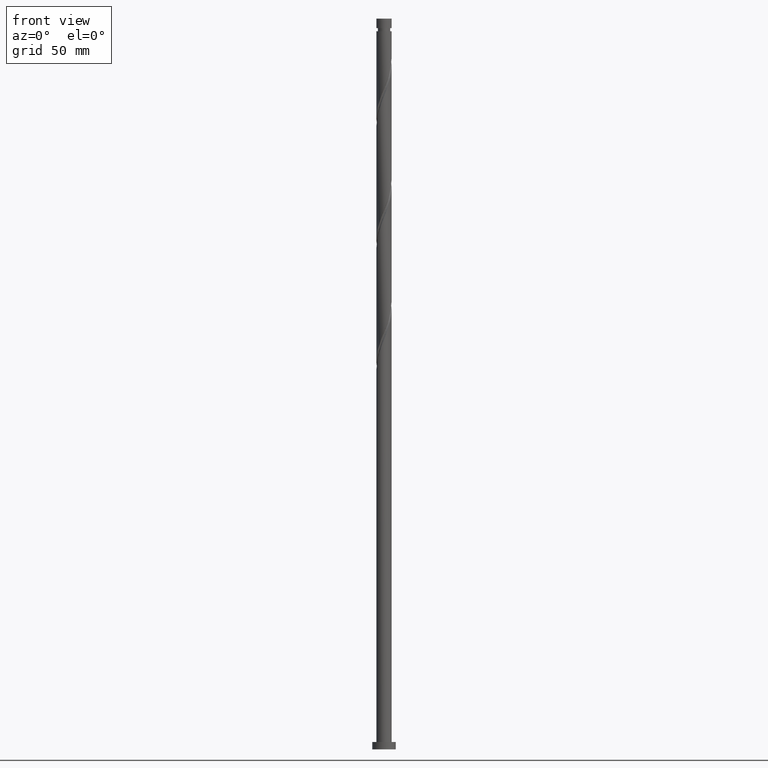
[diagram: clean part render]
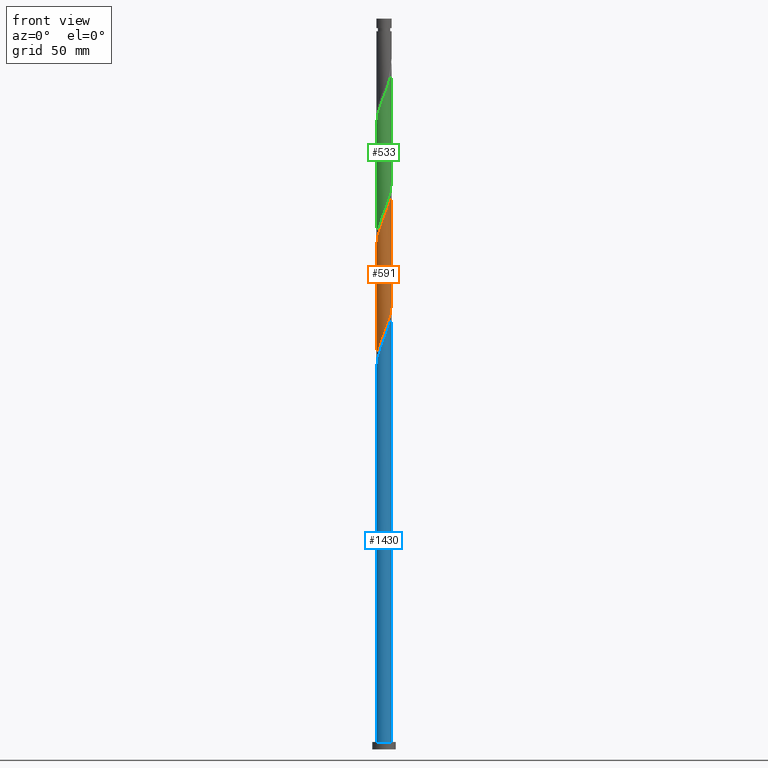
[diagram: same view with three faces highlighted in distinct colors, each labeled with its STEP entity id]
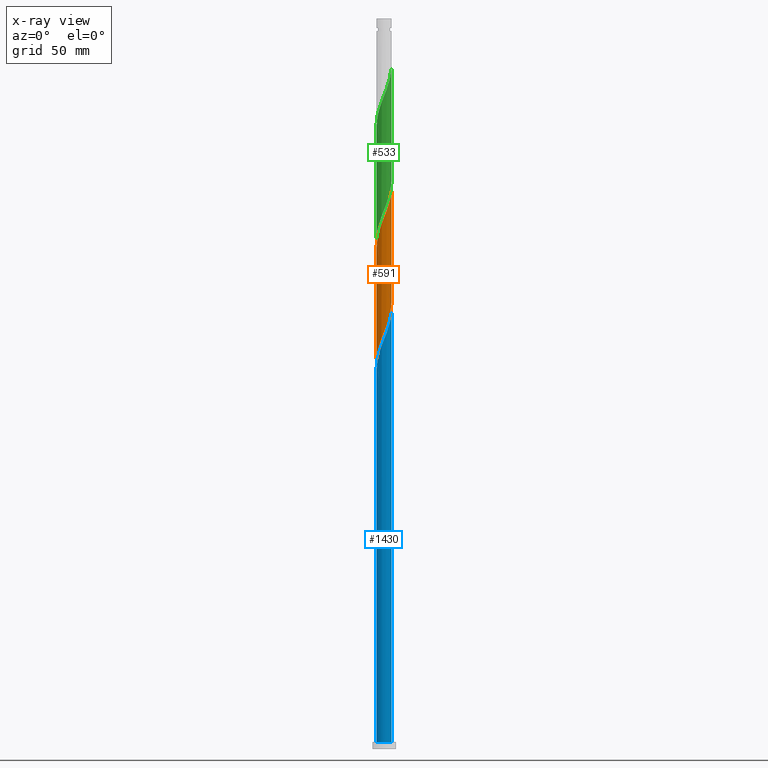
[diagram: x-ray of the same camera — body ghosted, the three highlighted faces saturated]
A machine part, front view with three faces highlighted in distinct colors.
The next image is the same camera in x-ray (body ghosted, the three faces saturated) — at least one of them is partly hidden behind the body in this view.
Their STEP definitions:

[orange] entity #591 — the highlighted cylindrical surface (edge-blend (fillet) strip) has radius 5.25 mm, axis along (-0, -0, -1).
#5 = CARTESIAN_POINT ( 'NONE',  ( 1.551475079234567289, -5.042102405546457611, 367.6823340781717206 ) ) ;
#25 = ORIENTED_EDGE ( 'NONE', *, *, #572, .F. ) ;
#36 = CARTESIAN_POINT ( 'NONE',  ( 2.505329302562050220, -4.642542048837816182, 370.2865007448382926 ) ) ;
#47 = CARTESIAN_POINT ( 'NONE',  ( 1.989741939380055280, -4.858335827695745124, 290.8594174115050919 ) ) ;
#68 = ORIENTED_EDGE ( 'NONE', *, *, #1808, .T. ) ;
#77 = CARTESIAN_POINT ( 'NONE',  ( -0.5379985386893463284, -5.247897594453547754, 284.3490007448383494 ) ) ;
#84 = CARTESIAN_POINT ( 'NONE',  ( 5.145000000000000462, -1.044736808961957086, 303.8802507448384063 ) ) ;
#93 = CARTESIAN_POINT ( 'NONE',  ( 2.899323907032591130, -4.376804871376982931, 293.4635840781717206 ) ) ;
#136 =( BOUNDED_CURVE ( )  B_SPLINE_CURVE ( 2, ( #312, #1644, #1952, #355, #1619, #802, #498, #488, #346, #675, #323, #1129, #1148, #478, #1760, #834, #202, #824, #642, #964, #953, #5, #1439, #36, #2085, #1474, #1914, #813, #468, #334, #1453, #1600, #2097, #1772, #1463 ),
 .UNSPECIFIED., .F., .T. ) 
 B_SPLINE_CURVE_WITH_KNOTS ( ( 3, 2, 2, 2, 2, 2, 2, 2, 2, 2, 2, 2, 2, 2, 2, 2, 2, 3 ),
 ( 0.3045286902180874833, 0.3046875000000000000, 0.3125000000000000000, 0.3203125000000000000, 0.3281250000000000000, 0.3359375000000000000, 0.3437500000000000000, 0.3515625000000000000, 0.3593750000000000000, 0.3671875000000000000, 0.3750000000000000000, 0.3828125000000000000, 0.3906250000000000000, 0.3984375000000000000, 0.4062500000000000000, 0.4140625000000000000, 0.4218750000000000000, 0.4295286902180870392 ),
 .UNSPECIFIED. ) 
 CURVE ( )  GEOMETRIC_REPRESENTATION_ITEM ( )  RATIONAL_B_SPLINE_CURVE ( ( 0.9089165573359552219, 0.9090019243628598700, 0.9090909090909514711, 0.9047133878838575782, 0.9090909090909514711, 0.9047133878838575782, 0.9090909090909514711, 0.9047133878838575782, 0.9090909090909514711, 0.9047133878838575782, 0.9090909090909514711, 0.9047133878838575782, 0.9090909090909514711, 0.9047133878838575782, 0.9090909090909514711, 0.9047133878838575782, 0.9090909090909514711, 0.9047133878838575782, 0.9090909090909514711, 0.9047133878838575782, 0.9090909090909514711, 0.9047133878838575782, 0.9090909090909514711, 0.9047133878838575782, 0.9090909090909514711, 0.9047133878838575782, 0.9090909090909514711, 0.9047133878838575782, 0.9090909090909514711, 0.9047133878838575782, 0.9090909090909514711, 0.9047133878838575782, 0.9090909090909514711, 0.9048023726119495125, 0.9089165573359546668 ) ) 
 REPRESENTATION_ITEM ( '' )  );
#177 = CARTESIAN_POINT ( 'NONE',  ( -1.044736808961956864, -5.145000000000000462, 283.0469174115049782 ) ) ;
#189 = CARTESIAN_POINT ( 'NONE',  ( -2.505329302562051108, -4.642542048837808188, 279.1406674115050350 ) ) ;
#202 = CARTESIAN_POINT ( 'NONE',  ( -1.003695304857283421, -5.153163662742290541, 361.1719174115049782 ) ) ;
#223 = CARTESIAN_POINT ( 'NONE',  ( 4.064571404759904638, -3.362905125796934680, 297.3698340781717206 ) ) ;
#252 = CARTESIAN_POINT ( 'NONE',  ( 5.250000000000000000, 6.429395695523604153E-16, 500.0000000000000000 ) ) ;
#257 = CARTESIAN_POINT ( 'NONE',  ( 0.4961529839846474665, -5.252019021860672154, 286.9531674115050919 ) ) ;
#312 = CARTESIAN_POINT ( 'NONE',  ( -5.250000000000007105, 4.380000364129938595E-15, 342.8900537668416177 ) ) ;
#323 = CARTESIAN_POINT ( 'NONE',  ( -3.697486482897451410, -3.727075758391652727, 353.3594174115049782 ) ) ;
#334 = CARTESIAN_POINT ( 'NONE',  ( 4.662363351767599973, -2.468246253030207171, 378.0990007448382926 ) ) ;
#346 = CARTESIAN_POINT ( 'NONE',  ( -4.353556726798863963, -2.934117214179494226, 350.7552507448383494 ) ) ;
#350 = DIRECTION ( 'NONE',  ( -0.000000000000000000, -0.000000000000000000, -1.000000000000000000 ) ) ;
#355 = CARTESIAN_POINT ( 'NONE',  ( -5.247897594453553083, -0.5379985386893452182, 344.2448340781717206 ) ) ;
#357 = VERTEX_POINT ( 'NONE', #1413 ) ;
#398 = CARTESIAN_POINT ( 'NONE',  ( 5.250000000000000000, 3.394034324715177098E-15, 306.5371143895018804 ) ) ;
#439 = CARTESIAN_POINT ( 'NONE',  ( -5.153163662742282547, -1.003695304857280757, 267.4219174115050350 ) ) ;
#468 = CARTESIAN_POINT ( 'NONE',  ( 4.376804871376984707, -2.899323907032597347, 376.7969174115049782 ) ) ;
#478 = CARTESIAN_POINT ( 'NONE',  ( -2.468246253030205395, -4.662363351767602637, 357.2656674115049782 ) ) ;
#488 = CARTESIAN_POINT ( 'NONE',  ( -4.642542048837816182, -2.505329302562050220, 349.4531674115049782 ) ) ;
#498 = CARTESIAN_POINT ( 'NONE',  ( -4.842322227192138229, -2.028402190898309865, 348.1510840781717206 ) ) ;
#503 = CARTESIAN_POINT ( 'NONE',  ( 5.250000000000000000, 3.394034324715177098E-15, 306.5371143895018804 ) ) ;
#512 = CARTESIAN_POINT ( 'NONE',  ( -3.362905125796934680, -4.064571404759904638, 276.5365007448384631 ) ) ;
#543 = LINE ( 'NONE', #252, #1329 ) ;
#546 = CARTESIAN_POINT ( 'NONE',  ( 4.842322227192129347, -2.028402190898310309, 301.2760840781717206 ) ) ;
#572 = EDGE_CURVE ( 'NONE', #357, #711, #136, .T. ) ;
#591 = ADVANCED_FACE ( 'NONE', ( #661 ), #1294, .T. ) ;
#642 = CARTESIAN_POINT ( 'NONE',  ( 0.02092277735234629454, -5.249958308157117060, 363.7760840781717206 ) ) ;
#661 = FACE_OUTER_BOUND ( 'NONE', #1916, .T. ) ;
#675 = CARTESIAN_POINT ( 'NONE',  ( -4.064571404759911744, -3.362905125796938233, 352.0573340781716070 ) ) ;
#676 = CARTESIAN_POINT ( 'NONE',  ( -1.551475079234566845, -5.042102405546450505, 281.7448340781717775 ) ) ;
#701 = CARTESIAN_POINT ( 'NONE',  ( 1.511237625729912715, -5.054308303623891163, 289.5573340781718343 ) ) ;
#711 = VERTEX_POINT ( 'NONE', #715 ) ;
#715 = CARTESIAN_POINT ( 'NONE',  ( 5.250000000000007105, -6.256877115908171132E-15, 384.5567204335081897 ) ) ;
#734 = CARTESIAN_POINT ( 'NONE',  ( 4.642542048837808188, -2.505329302562051108, 299.9740007448382926 ) ) ;
#736 = EDGE_CURVE ( 'NONE', #711, #1374, #543, .T. ) ;
#802 = CARTESIAN_POINT ( 'NONE',  ( -5.042102405546457611, -1.551475079234567733, 346.8490007448382926 ) ) ;
#804 = CARTESIAN_POINT ( 'NONE',  ( -2.028402190898309865, -4.842322227192129347, 280.4427507448383494 ) ) ;
#813 = CARTESIAN_POINT ( 'NONE',  ( 4.091246390986365888, -3.330401561034990188, 375.4948340781716070 ) ) ;
#824 = CARTESIAN_POINT ( 'NONE',  ( -0.4961529839846501866, -5.252019021860680148, 362.4740007448382926 ) ) ;
#834 = CARTESIAN_POINT ( 'NONE',  ( -1.511237625729916711, -5.054308303623898269, 359.8698340781716638 ) ) ;
#867 = CARTESIAN_POINT ( 'NONE',  ( 3.697486482897444304, -3.727075758391648730, 296.0677507448384063 ) ) ;
#877 = CARTESIAN_POINT ( 'NONE',  ( 5.247897594453547754, -0.5379985386893489929, 305.1823340781717775 ) ) ;
#953 = CARTESIAN_POINT ( 'NONE',  ( 1.044736808961956420, -5.145000000000004903, 366.3802507448384631 ) ) ;
#964 = CARTESIAN_POINT ( 'NONE',  ( 0.5379985386893448851, -5.247897594453553083, 365.0781674115050350 ) ) ;
#1023 = CARTESIAN_POINT ( 'NONE',  ( 0.000000000000000000, 0.000000000000000000, 500.0000000000000000 ) ) ;
#1046 = CARTESIAN_POINT ( 'NONE',  ( 5.042102405546450505, -1.551475079234565069, 302.5781674115050350 ) ) ;
#1075 = CARTESIAN_POINT ( 'NONE',  ( -5.250000000000021316, -0.5065190283770373281, 266.1464278282508644 ) ) ;
#1115 = CARTESIAN_POINT ( 'NONE',  ( 1.003695304857280535, -5.153163662742282547, 288.2552507448383494 ) ) ;
#1129 = CARTESIAN_POINT ( 'NONE',  ( -3.330401561034990188, -4.091246390986367665, 354.6615007448382926 ) ) ;
#1142 =( BOUNDED_CURVE ( )  B_SPLINE_CURVE ( 2, ( #398, #1822, #1529, #877, #84, #1046, #546, #734, #1694, #223, #867, #2020, #93, #1363, #47, #701, #1115, #257, #1826, #77, #177, #676, #804, #189, #1441, #512, #1733, #1614, #2056, #1418, #1918, #1271, #439, #1075, #1737 ),
 .UNSPECIFIED., .F., .T. ) 
 B_SPLINE_CURVE_WITH_KNOTS ( ( 3, 2, 2, 2, 2, 2, 2, 2, 2, 2, 2, 2, 2, 2, 2, 2, 2, 3 ),
 ( 0.8045286902180871502, 0.8046875000000000000, 0.8125000000000000000, 0.8203125000000000000, 0.8281250000000000000, 0.8359375000000000000, 0.8437500000000000000, 0.8515625000000000000, 0.8593750000000000000, 0.8671875000000000000, 0.8750000000000000000, 0.8828125000000000000, 0.8906250000000000000, 0.8984375000000000000, 0.9062500000000000000, 0.9140625000000000000, 0.9218750000000000000, 0.9295286902180889266 ),
 .UNSPECIFIED. ) 
 CURVE ( )  GEOMETRIC_REPRESENTATION_ITEM ( )  RATIONAL_B_SPLINE_CURVE ( ( 0.9089165573359491157, 0.9090019243628539858, 0.9090909090909458090, 0.9047133878838519161, 0.9090909090909458090, 0.9047133878838519161, 0.9090909090909458090, 0.9047133878838519161, 0.9090909090909458090, 0.9047133878838519161, 0.9090909090909458090, 0.9047133878838519161, 0.9090909090909458090, 0.9047133878838519161, 0.9090909090909458090, 0.9047133878838519161, 0.9090909090909458090, 0.9047133878838519161, 0.9090909090909458090, 0.9047133878838519161, 0.9090909090909458090, 0.9047133878838519161, 0.9090909090909458090, 0.9047133878838519161, 0.9090909090909458090, 0.9047133878838519161, 0.9090909090909458090, 0.9047133878838519161, 0.9090909090909458090, 0.9047133878838519161, 0.9090909090909458090, 0.9047133878838519161, 0.9090909090909458090, 0.9048023726119428511, 0.9089165573359510031 ) ) 
 REPRESENTATION_ITEM ( '' )  );
#1148 = CARTESIAN_POINT ( 'NONE',  ( -2.899323907032597347, -4.376804871376984707, 355.9635840781717206 ) ) ;
#1181 = DIRECTION ( 'NONE',  ( -0.000000000000000000, -0.000000000000000000, -1.000000000000000000 ) ) ;
#1223 = AXIS2_PLACEMENT_3D ( 'NONE', #1023, #1361, #1818 ) ;
#1271 = CARTESIAN_POINT ( 'NONE',  ( -5.054308303623891163, -1.511237625729913381, 268.7240007448383494 ) ) ;
#1294 = CYLINDRICAL_SURFACE ( 'NONE', #1223, 5.250000000000000000 ) ;
#1329 = VECTOR ( 'NONE', #1181, 1000.000000000000000 ) ;
#1361 = DIRECTION ( 'NONE',  ( -0.000000000000000000, -0.000000000000000000, -1.000000000000000000 ) ) ;
#1363 = CARTESIAN_POINT ( 'NONE',  ( 2.468246253030199622, -4.662363351767597308, 292.1615007448384063 ) ) ;
#1374 = VERTEX_POINT ( 'NONE', #503 ) ;
#1413 = CARTESIAN_POINT ( 'NONE',  ( -5.250000000000007105, 4.380000364129938595E-15, 342.8900537668416177 ) ) ;
#1418 = CARTESIAN_POINT ( 'NONE',  ( -4.662363351767597308, -2.468246253030200510, 271.3281674115049782 ) ) ;
#1439 = CARTESIAN_POINT ( 'NONE',  ( 2.028402190898310309, -4.842322227192136452, 368.9844174115050350 ) ) ;
#1441 = CARTESIAN_POINT ( 'NONE',  ( -2.934117214179492894, -4.353556726798856857, 277.8385840781716638 ) ) ;
#1453 = CARTESIAN_POINT ( 'NONE',  ( 4.858335827695750453, -1.989741939380060387, 379.4010840781716638 ) ) ;
#1463 = CARTESIAN_POINT ( 'NONE',  ( 5.250000000000006217, -6.256877115908171132E-15, 384.5567204335081897 ) ) ;
#1474 = CARTESIAN_POINT ( 'NONE',  ( 3.362905125796937789, -4.064571404759911744, 372.8906674115050919 ) ) ;
#1504 = VERTEX_POINT ( 'NONE', #1833 ) ;
#1529 = CARTESIAN_POINT ( 'NONE',  ( 5.249958308157110842, -0.02092277735234848723, 306.4844174115050350 ) ) ;
#1560 = EDGE_CURVE ( 'NONE', #1374, #1504, #1142, .T. ) ;
#1600 = CARTESIAN_POINT ( 'NONE',  ( 5.054308303623898269, -1.511237625729916711, 380.7031674115049782 ) ) ;
#1614 = CARTESIAN_POINT ( 'NONE',  ( -4.091246390986364112, -3.330401561034983082, 273.9323340781717206 ) ) ;
#1619 = CARTESIAN_POINT ( 'NONE',  ( -5.145000000000004903, -1.044736808961956864, 345.5469174115050350 ) ) ;
#1626 = LINE ( 'NONE', #1959, #1846 ) ;
#1640 = ORIENTED_EDGE ( 'NONE', *, *, #1560, .F. ) ;
#1644 = CARTESIAN_POINT ( 'NONE',  ( -5.250000000000006217, -0.01046143021488924602, 342.9164073213589177 ) ) ;
#1661 = ORIENTED_EDGE ( 'NONE', *, *, #736, .F. ) ;
#1694 = CARTESIAN_POINT ( 'NONE',  ( 4.353556726798855081, -2.934117214179494226, 298.6719174115050350 ) ) ;
#1733 = CARTESIAN_POINT ( 'NONE',  ( -3.727075758391648730, -3.697486482897445637, 275.2344174115050919 ) ) ;
#1737 = CARTESIAN_POINT ( 'NONE',  ( -5.249999999999998224, 2.312341979469867591E-13, 264.8704477228346263 ) ) ;
#1760 = CARTESIAN_POINT ( 'NONE',  ( -1.989741939380060387, -4.858335827695750453, 358.5677507448383494 ) ) ;
#1772 = CARTESIAN_POINT ( 'NONE',  ( 5.250000000000005329, -0.5065190283771637825, 383.2807403280921221 ) ) ;
#1808 = EDGE_CURVE ( 'NONE', #357, #1504, #1626, .T. ) ;
#1818 = DIRECTION ( 'NONE',  ( -1.000000000000000000, 0.000000000000000000, 0.000000000000000000 ) ) ;
#1822 = CARTESIAN_POINT ( 'NONE',  ( 5.250000000000000000, -0.01046143021486825413, 306.5107608349845805 ) ) ;
#1826 = CARTESIAN_POINT ( 'NONE',  ( -0.02092277735234825825, -5.249958308157110842, 285.6510840781717206 ) ) ;
#1833 = CARTESIAN_POINT ( 'NONE',  ( -5.249999999999998224, 2.312341979469867591E-13, 264.8704477228346263 ) ) ;
#1846 = VECTOR ( 'NONE', #350, 1000.000000000000000 ) ;
#1914 = CARTESIAN_POINT ( 'NONE',  ( 3.727075758391652727, -3.697486482897451410, 374.1927507448382926 ) ) ;
#1916 = EDGE_LOOP ( 'NONE', ( #1661, #25, #68, #1640 ) ) ;
#1918 = CARTESIAN_POINT ( 'NONE',  ( -4.858335827695745124, -1.989741939380055280, 270.0260840781717775 ) ) ;
#1952 = CARTESIAN_POINT ( 'NONE',  ( -5.249958308157117060, -0.02092277735234758171, 342.9427507448384063 ) ) ;
#1959 = CARTESIAN_POINT ( 'NONE',  ( -5.250000000000000000, 0.000000000000000000, 500.0000000000000000 ) ) ;
#2020 = CARTESIAN_POINT ( 'NONE',  ( 3.330401561034981750, -4.091246390986365888, 294.7656674115049782 ) ) ;
#2056 = CARTESIAN_POINT ( 'NONE',  ( -4.376804871376981154, -2.899323907032591130, 272.6302507448383494 ) ) ;
#2085 = CARTESIAN_POINT ( 'NONE',  ( 2.934117214179494226, -4.353556726798864851, 371.5885840781717206 ) ) ;
#2097 = CARTESIAN_POINT ( 'NONE',  ( 5.153163662742286988, -1.003695304857286530, 382.0052507448382926 ) ) ;

[blue] entity #1430 — the highlighted cylindrical surface (edge-blend (fillet) strip) has radius 5.25 mm, axis along (-0, -0, -1).
#11 = CARTESIAN_POINT ( 'NONE',  ( 1.044736808961956420, -5.145000000000004903, 283.0469174115050350 ) ) ;
#51 = CARTESIAN_POINT ( 'NONE',  ( 3.362905125796937789, -4.064571404759911744, 289.5573340781717206 ) ) ;
#65 = CARTESIAN_POINT ( 'NONE',  ( 3.727075758391652727, -3.697486482897451410, 290.8594174115050350 ) ) ;
#79 = VERTEX_POINT ( 'NONE', #879 ) ;
#110 = CARTESIAN_POINT ( 'NONE',  ( -5.145000000000004903, -1.044736808961956864, 262.2135840781717206 ) ) ;
#120 = CARTESIAN_POINT ( 'NONE',  ( -3.697486482897451410, -3.727075758391652727, 270.0260840781716638 ) ) ;
#168 = DIRECTION ( 'NONE',  ( -1.000000000000000000, 0.000000000000000000, 0.000000000000000000 ) ) ;
#179 = ORIENTED_EDGE ( 'NONE', *, *, #1973, .F. ) ;
#194 = CARTESIAN_POINT ( 'NONE',  ( 0.02092277735234629454, -5.249958308157117060, 280.4427507448382926 ) ) ;
#227 = EDGE_CURVE ( 'NONE', #1961, #1593, #548, .T. ) ;
#273 = CARTESIAN_POINT ( 'NONE',  ( 5.054308303623898269, -1.511237625729916711, 297.3698340781715501 ) ) ;
#378 = EDGE_CURVE ( 'NONE', #79, #1269, #1229, .T. ) ;
#417 = CARTESIAN_POINT ( 'NONE',  ( -0.4961529839846501866, -5.252019021860680148, 279.1406674115049782 ) ) ;
#515 =( BOUNDED_CURVE ( )  B_SPLINE_CURVE ( 2, ( #1454, #1281, #585, #754, #110, #1721, #1249, #764, #1567, #1220, #120, #774, #1404, #606, #1238, #1580, #1865, #417, #194, #690, #11, #838, #707, #1332, #581, #51, #65, #1222, #1788, #984, #1695, #273, #1031, #1549, #919 ),
 .UNSPECIFIED., .F., .T. ) 
 B_SPLINE_CURVE_WITH_KNOTS ( ( 3, 2, 2, 2, 2, 2, 2, 2, 2, 2, 2, 2, 2, 2, 2, 2, 2, 3 ),
 ( 0.05452869021808718492, 0.05468750000000000000, 0.06250000000000000000, 0.07031250000000000000, 0.07812500000000000000, 0.08593750000000000000, 0.09375000000000000000, 0.1015625000000000000, 0.1093750000000000000, 0.1171875000000000000, 0.1250000000000000000, 0.1328125000000000000, 0.1406250000000000000, 0.1484375000000000000, 0.1562500000000000000, 0.1640625000000000000, 0.1718750000000000000, 0.1795286902180872057 ),
 .UNSPECIFIED. ) 
 CURVE ( )  GEOMETRIC_REPRESENTATION_ITEM ( )  RATIONAL_B_SPLINE_CURVE ( ( 0.9089165573359548889, 0.9090019243628596479, 0.9090909090909514711, 0.9047133878838575782, 0.9090909090909514711, 0.9047133878838575782, 0.9090909090909514711, 0.9047133878838575782, 0.9090909090909514711, 0.9047133878838575782, 0.9090909090909514711, 0.9047133878838575782, 0.9090909090909514711, 0.9047133878838575782, 0.9090909090909514711, 0.9047133878838575782, 0.9090909090909514711, 0.9047133878838575782, 0.9090909090909514711, 0.9047133878838575782, 0.9090909090909514711, 0.9047133878838575782, 0.9090909090909514711, 0.9047133878838575782, 0.9090909090909514711, 0.9047133878838575782, 0.9090909090909514711, 0.9047133878838575782, 0.9090909090909514711, 0.9047133878838575782, 0.9090909090909514711, 0.9047133878838575782, 0.9090909090909514711, 0.9048023726119494015, 0.9089165573359548889 ) ) 
 REPRESENTATION_ITEM ( '' )  );
#548 = LINE ( 'NONE', #1184, #706 ) ;
#558 = CARTESIAN_POINT ( 'NONE',  ( 5.250000000000000000, 6.429395695523604153E-16, 5.000000000000000000 ) ) ;
#581 = CARTESIAN_POINT ( 'NONE',  ( 2.934117214179494226, -4.353556726798864851, 288.2552507448382926 ) ) ;
#585 = CARTESIAN_POINT ( 'NONE',  ( -5.249958308157117060, -0.02092277735234758171, 259.6094174115049782 ) ) ;
#606 = CARTESIAN_POINT ( 'NONE',  ( -2.468246253030205395, -4.662363351767602637, 273.9323340781717206 ) ) ;
#628 = DIRECTION ( 'NONE',  ( -0.000000000000000000, -0.000000000000000000, -1.000000000000000000 ) ) ;
#679 = FACE_OUTER_BOUND ( 'NONE', #882, .T. ) ;
#690 = CARTESIAN_POINT ( 'NONE',  ( 0.5379985386893448851, -5.247897594453553083, 281.7448340781716070 ) ) ;
#706 = VECTOR ( 'NONE', #1366, 1000.000000000000000 ) ;
#707 = CARTESIAN_POINT ( 'NONE',  ( 2.028402190898310309, -4.842322227192136452, 285.6510840781717206 ) ) ;
#754 = CARTESIAN_POINT ( 'NONE',  ( -5.247897594453553083, -0.5379985386893452182, 260.9115007448383494 ) ) ;
#764 = CARTESIAN_POINT ( 'NONE',  ( -4.642542048837816182, -2.505329302562050220, 266.1198340781717206 ) ) ;
#774 = CARTESIAN_POINT ( 'NONE',  ( -3.330401561034990188, -4.091246390986367665, 271.3281674115050350 ) ) ;
#838 = CARTESIAN_POINT ( 'NONE',  ( 1.551475079234567289, -5.042102405546457611, 284.3490007448382357 ) ) ;
#851 = DIRECTION ( 'NONE',  ( 1.000000000000000000, 0.000000000000000000, 0.000000000000000000 ) ) ;
#854 = ORIENTED_EDGE ( 'NONE', *, *, #2035, .T. ) ;
#879 = CARTESIAN_POINT ( 'NONE',  ( 5.250000000000007105, -6.256877115908171132E-15, 301.2233871001748184 ) ) ;
#882 = EDGE_LOOP ( 'NONE', ( #1892, #179, #2053, #854 ) ) ;
#919 = CARTESIAN_POINT ( 'NONE',  ( 5.250000000000007105, -6.256877115908171132E-15, 301.2233871001748184 ) ) ;
#948 = CARTESIAN_POINT ( 'NONE',  ( -5.250000000000000000, 0.000000000000000000, 5.000000000000000000 ) ) ;
#969 = DIRECTION ( 'NONE',  ( -0.000000000000000000, -0.000000000000000000, -1.000000000000000000 ) ) ;
#984 = CARTESIAN_POINT ( 'NONE',  ( 4.662363351767599973, -2.468246253030207171, 294.7656674115049782 ) ) ;
#1031 = CARTESIAN_POINT ( 'NONE',  ( 5.153163662742286988, -1.003695304857286530, 298.6719174115049782 ) ) ;
#1055 = VECTOR ( 'NONE', #628, 1000.000000000000000 ) ;
#1057 = AXIS2_PLACEMENT_3D ( 'NONE', #1778, #1669, #851 ) ;
#1184 = CARTESIAN_POINT ( 'NONE',  ( -5.250000000000000000, 0.000000000000000000, 500.0000000000000000 ) ) ;
#1220 = CARTESIAN_POINT ( 'NONE',  ( -4.064571404759911744, -3.362905125796938233, 268.7240007448383494 ) ) ;
#1222 = CARTESIAN_POINT ( 'NONE',  ( 4.091246390986365888, -3.330401561034990188, 292.1615007448382357 ) ) ;
#1229 = LINE ( 'NONE', #2063, #1055 ) ;
#1238 = CARTESIAN_POINT ( 'NONE',  ( -1.989741939380060387, -4.858335827695750453, 275.2344174115050350 ) ) ;
#1249 = CARTESIAN_POINT ( 'NONE',  ( -4.842322227192138229, -2.028402190898309865, 264.8177507448382926 ) ) ;
#1269 = VERTEX_POINT ( 'NONE', #558 ) ;
#1281 = CARTESIAN_POINT ( 'NONE',  ( -5.250000000000007105, -0.01046143021486959160, 259.5830739880253759 ) ) ;
#1308 = CYLINDRICAL_SURFACE ( 'NONE', #1735, 5.250000000000000000 ) ;
#1332 = CARTESIAN_POINT ( 'NONE',  ( 2.505329302562050220, -4.642542048837816182, 286.9531674115049782 ) ) ;
#1366 = DIRECTION ( 'NONE',  ( -0.000000000000000000, -0.000000000000000000, -1.000000000000000000 ) ) ;
#1404 = CARTESIAN_POINT ( 'NONE',  ( -2.899323907032597347, -4.376804871376984707, 272.6302507448382926 ) ) ;
#1430 = ADVANCED_FACE ( 'NONE', ( #679 ), #1308, .T. ) ;
#1454 = CARTESIAN_POINT ( 'NONE',  ( -5.250000000000007105, 4.380000364129938595E-15, 259.5567204335081897 ) ) ;
#1549 = CARTESIAN_POINT ( 'NONE',  ( 5.250000000000006217, -0.5065190283771527913, 299.9474069947586941 ) ) ;
#1567 = CARTESIAN_POINT ( 'NONE',  ( -4.353556726798863963, -2.934117214179494226, 267.4219174115050350 ) ) ;
#1580 = CARTESIAN_POINT ( 'NONE',  ( -1.511237625729916711, -5.054308303623898269, 276.5365007448383494 ) ) ;
#1593 = VERTEX_POINT ( 'NONE', #948 ) ;
#1669 = DIRECTION ( 'NONE',  ( 0.000000000000000000, 0.000000000000000000, 1.000000000000000000 ) ) ;
#1695 = CARTESIAN_POINT ( 'NONE',  ( 4.858335827695750453, -1.989741939380060387, 296.0677507448383494 ) ) ;
#1721 = CARTESIAN_POINT ( 'NONE',  ( -5.042102405546457611, -1.551475079234567733, 263.5156674115050350 ) ) ;
#1735 = AXIS2_PLACEMENT_3D ( 'NONE', #1764, #969, #168 ) ;
#1764 = CARTESIAN_POINT ( 'NONE',  ( 0.000000000000000000, 0.000000000000000000, 500.0000000000000000 ) ) ;
#1769 = CIRCLE ( 'NONE', #1057, 5.250000000000000000 ) ;
#1778 = CARTESIAN_POINT ( 'NONE',  ( 0.000000000000000000, 0.000000000000000000, 5.000000000000000000 ) ) ;
#1788 = CARTESIAN_POINT ( 'NONE',  ( 4.376804871376984707, -2.899323907032597347, 293.4635840781717775 ) ) ;
#1819 = CARTESIAN_POINT ( 'NONE',  ( -5.250000000000007105, 4.380000364129938595E-15, 259.5567204335081897 ) ) ;
#1865 = CARTESIAN_POINT ( 'NONE',  ( -1.003695304857283421, -5.153163662742290541, 277.8385840781717775 ) ) ;
#1892 = ORIENTED_EDGE ( 'NONE', *, *, #378, .F. ) ;
#1961 = VERTEX_POINT ( 'NONE', #1819 ) ;
#1973 = EDGE_CURVE ( 'NONE', #1961, #79, #515, .T. ) ;
#2035 = EDGE_CURVE ( 'NONE', #1593, #1269, #1769, .T. ) ;
#2053 = ORIENTED_EDGE ( 'NONE', *, *, #227, .T. ) ;
#2063 = CARTESIAN_POINT ( 'NONE',  ( 5.250000000000000000, 6.429395695523604153E-16, 500.0000000000000000 ) ) ;

[green] entity #533 — the highlighted cylindrical surface (edge-blend (fillet) strip) has radius 5.25 mm, axis along (-0, -0, -1).
#42 = CARTESIAN_POINT ( 'NONE',  ( 5.250000000000000000, 3.394034324715176704E-15, 389.8704477228353085 ) ) ;
#64 = CARTESIAN_POINT ( 'NONE',  ( 5.153163662742286988, -1.003695304857286530, 465.3385840781716638 ) ) ;
#75 = CARTESIAN_POINT ( 'NONE',  ( -5.250000000000006217, -0.01046143021487461883, 426.2497406546921752 ) ) ;
#95 = CARTESIAN_POINT ( 'NONE',  ( 3.362905125796937789, -4.064571404759911744, 456.2240007448382926 ) ) ;
#105 = CARTESIAN_POINT ( 'NONE',  ( 5.250000000000000000, 6.429395695523604153E-16, 500.0000000000000000 ) ) ;
#150 = LINE ( 'NONE', #1854, #1396 ) ;
#156 = EDGE_CURVE ( 'NONE', #192, #2088, #1872, .T. ) ;
#172 = CARTESIAN_POINT ( 'NONE',  ( -5.054308303623891163, -1.511237625729913381, 352.0573340781717206 ) ) ;
#183 = CARTESIAN_POINT ( 'NONE',  ( -2.934117214179492894, -4.353556726798856857, 361.1719174115050350 ) ) ;
#192 = VERTEX_POINT ( 'NONE', #225 ) ;
#198 = CARTESIAN_POINT ( 'NONE',  ( 1.989741939380055280, -4.858335827695745124, 374.1927507448383494 ) ) ;
#225 = CARTESIAN_POINT ( 'NONE',  ( -5.250000000000007105, 4.380000364129938595E-15, 426.2233871001749321 ) ) ;
#244 = CARTESIAN_POINT ( 'NONE',  ( 1.003695304857280535, -5.153163662742282547, 371.5885840781717206 ) ) ;
#256 = CARTESIAN_POINT ( 'NONE',  ( 2.505329302562050220, -4.642542048837816182, 453.6198340781716638 ) ) ;
#307 = CARTESIAN_POINT ( 'NONE',  ( -5.153163662742282547, -1.003695304857280757, 350.7552507448382926 ) ) ;
#330 = CARTESIAN_POINT ( 'NONE',  ( -1.044736808961956864, -5.145000000000000462, 366.3802507448383494 ) ) ;
#340 = CARTESIAN_POINT ( 'NONE',  ( 4.064571404759904638, -3.362905125796934680, 380.7031674115050350 ) ) ;
#377 = CARTESIAN_POINT ( 'NONE',  ( 0.02092277735234629454, -5.249958308157117060, 447.1094174115049782 ) ) ;
#381 = CARTESIAN_POINT ( 'NONE',  ( 5.145000000000000462, -1.044736808961957086, 387.2135840781718343 ) ) ;
#389 = CARTESIAN_POINT ( 'NONE',  ( -2.899323907032597347, -4.376804871376984707, 439.2969174115050350 ) ) ;
#441 = LINE ( 'NONE', #105, #1473 ) ;
#459 = ORIENTED_EDGE ( 'NONE', *, *, #1590, .F. ) ;
#473 = CARTESIAN_POINT ( 'NONE',  ( -4.858335827695745124, -1.989741939380055280, 353.3594174115051487 ) ) ;
#485 = CARTESIAN_POINT ( 'NONE',  ( -4.662363351767597308, -2.468246253030200510, 354.6615007448383494 ) ) ;
#510 = CARTESIAN_POINT ( 'NONE',  ( 0.000000000000000000, 0.000000000000000000, 500.0000000000000000 ) ) ;
#533 = ADVANCED_FACE ( 'NONE', ( #1117 ), #686, .T. ) ;
#537 = CARTESIAN_POINT ( 'NONE',  ( 4.091246390986365888, -3.330401561034990188, 458.8281674115050350 ) ) ;
#550 = CARTESIAN_POINT ( 'NONE',  ( 5.250000000000006217, 1.054927747275550709E-15, 467.8900537668414472 ) ) ;
#621 = CARTESIAN_POINT ( 'NONE',  ( -0.5379985386893463284, -5.247897594453547754, 367.6823340781717206 ) ) ;
#632 = CARTESIAN_POINT ( 'NONE',  ( 5.250000000000000000, 3.394034324715177098E-15, 389.8704477228353085 ) ) ;
#635 = CARTESIAN_POINT ( 'NONE',  ( -3.362905125796934680, -4.064571404759904638, 359.8698340781716070 ) ) ;
#648 = CARTESIAN_POINT ( 'NONE',  ( -0.02092277735234825825, -5.249958308157110842, 368.9844174115050919 ) ) ;
#671 = CARTESIAN_POINT ( 'NONE',  ( 2.468246253030199622, -4.662363351767597308, 375.4948340781716638 ) ) ;
#686 = CYLINDRICAL_SURFACE ( 'NONE', #2021, 5.250000000000000000 ) ;
#693 = CARTESIAN_POINT ( 'NONE',  ( 5.250000000000000888, -0.01046143021485362694, 389.8440941683180085 ) ) ;
#696 = ORIENTED_EDGE ( 'NONE', *, *, #820, .F. ) ;
#704 = CARTESIAN_POINT ( 'NONE',  ( -5.247897594453553083, -0.5379985386893452182, 427.5781674115049782 ) ) ;
#729 = VERTEX_POINT ( 'NONE', #732 ) ;
#732 = CARTESIAN_POINT ( 'NONE',  ( -5.250000000000000000, 2.458633991631807121E-13, 348.2037810561679407 ) ) ;
#747 = CARTESIAN_POINT ( 'NONE',  ( -4.842322227192138229, -2.028402190898309865, 431.4844174115050350 ) ) ;
#820 = EDGE_CURVE ( 'NONE', #2088, #1796, #441, .T. ) ;
#826 = EDGE_LOOP ( 'NONE', ( #696, #1744, #1307, #459 ) ) ;
#830 = CARTESIAN_POINT ( 'NONE',  ( 2.899323907032591130, -4.376804871376982931, 376.7969174115050350 ) ) ;
#888 = CARTESIAN_POINT ( 'NONE',  ( -2.468246253030205395, -4.662363351767602637, 440.5990007448382926 ) ) ;
#896 = CARTESIAN_POINT ( 'NONE',  ( -4.353556726798863963, -2.934117214179494226, 434.0885840781716070 ) ) ;
#1003 = CARTESIAN_POINT ( 'NONE',  ( 5.042102405546450505, -1.551475079234565069, 385.9115007448384631 ) ) ;
#1009 = CARTESIAN_POINT ( 'NONE',  ( 1.551475079234567289, -5.042102405546457611, 451.0156674115049782 ) ) ;
#1019 = CARTESIAN_POINT ( 'NONE',  ( 0.5379985386893448851, -5.247897594453553083, 448.4115007448382926 ) ) ;
#1039 = CARTESIAN_POINT ( 'NONE',  ( -4.642542048837816182, -2.505329302562050220, 432.7865007448382926 ) ) ;
#1047 = CARTESIAN_POINT ( 'NONE',  ( -0.4961529839846501866, -5.252019021860680148, 445.8073340781716070 ) ) ;
#1117 = FACE_OUTER_BOUND ( 'NONE', #826, .T. ) ;
#1173 = CARTESIAN_POINT ( 'NONE',  ( 4.662363351767599973, -2.468246253030207171, 461.4323340781716070 ) ) ;
#1193 = CARTESIAN_POINT ( 'NONE',  ( 3.727075758391652727, -3.697486482897451410, 457.5260840781716070 ) ) ;
#1204 = CARTESIAN_POINT ( 'NONE',  ( -5.249958308157117060, -0.02092277735234758171, 426.2760840781717206 ) ) ;
#1290 = CARTESIAN_POINT ( 'NONE',  ( -5.250000000000024869, -0.5065190283770230062, 349.4797611615841788 ) ) ;
#1307 = ORIENTED_EDGE ( 'NONE', *, *, #1503, .T. ) ;
#1312 = CARTESIAN_POINT ( 'NONE',  ( 3.697486482897444304, -3.727075758391648730, 379.4010840781717206 ) ) ;
#1331 = CARTESIAN_POINT ( 'NONE',  ( -5.145000000000004903, -1.044736808961956864, 428.8802507448383494 ) ) ;
#1355 = CARTESIAN_POINT ( 'NONE',  ( -4.064571404759911744, -3.362905125796938233, 435.3906674115049782 ) ) ;
#1378 = CARTESIAN_POINT ( 'NONE',  ( 4.376804871376984707, -2.899323907032597347, 460.1302507448383494 ) ) ;
#1396 = VECTOR ( 'NONE', #1498, 1000.000000000000000 ) ;
#1449 = CARTESIAN_POINT ( 'NONE',  ( -2.028402190898309865, -4.842322227192129347, 363.7760840781717775 ) ) ;
#1469 = CARTESIAN_POINT ( 'NONE',  ( -4.376804871376981154, -2.899323907032591130, 355.9635840781717775 ) ) ;
#1473 = VECTOR ( 'NONE', #2048, 1000.000000000000000 ) ;
#1482 = CARTESIAN_POINT ( 'NONE',  ( 1.511237625729912715, -5.054308303623891163, 372.8906674115049782 ) ) ;
#1498 = DIRECTION ( 'NONE',  ( -0.000000000000000000, -0.000000000000000000, -1.000000000000000000 ) ) ;
#1500 = CARTESIAN_POINT ( 'NONE',  ( -5.042102405546457611, -1.551475079234567733, 430.1823340781716070 ) ) ;
#1503 = EDGE_CURVE ( 'NONE', #192, #729, #150, .T. ) ;
#1511 = CARTESIAN_POINT ( 'NONE',  ( -1.511237625729916711, -5.054308303623898269, 443.2031674115049213 ) ) ;
#1530 = CARTESIAN_POINT ( 'NONE',  ( 4.858335827695750453, -1.989741939380060387, 462.7344174115049782 ) ) ;
#1535 = CARTESIAN_POINT ( 'NONE',  ( 0.4961529839846474665, -5.252019021860672154, 370.2865007448382357 ) ) ;
#1590 = EDGE_CURVE ( 'NONE', #1796, #729, #1719, .T. ) ;
#1610 = DIRECTION ( 'NONE',  ( -0.000000000000000000, -0.000000000000000000, -1.000000000000000000 ) ) ;
#1628 = CARTESIAN_POINT ( 'NONE',  ( 5.247897594453547754, -0.5379985386893489929, 388.5156674115050919 ) ) ;
#1629 = CARTESIAN_POINT ( 'NONE',  ( -1.551475079234566845, -5.042102405546450505, 365.0781674115050919 ) ) ;
#1639 = CARTESIAN_POINT ( 'NONE',  ( 5.249958308157110842, -0.02092277735234848723, 389.8177507448384063 ) ) ;
#1656 = CARTESIAN_POINT ( 'NONE',  ( 5.250000000000002665, -0.5065190283771782154, 466.6140736614252660 ) ) ;
#1668 = CARTESIAN_POINT ( 'NONE',  ( 2.934117214179494226, -4.353556726798864851, 454.9219174115049782 ) ) ;
#1677 = CARTESIAN_POINT ( 'NONE',  ( -1.003695304857283421, -5.153163662742290541, 444.5052507448382926 ) ) ;
#1685 = CARTESIAN_POINT ( 'NONE',  ( -3.330401561034990188, -4.091246390986367665, 437.9948340781716070 ) ) ;
#1696 = CARTESIAN_POINT ( 'NONE',  ( 1.044736808961956420, -5.145000000000004903, 449.7135840781716638 ) ) ;
#1719 =( BOUNDED_CURVE ( )  B_SPLINE_CURVE ( 2, ( #42, #693, #1639, #1628, #381, #1003, #1995, #1946, #1985, #340, #1312, #1794, #830, #671, #198, #1482, #244, #1535, #648, #621, #330, #1629, #1449, #1931, #183, #635, #1920, #1783, #1469, #485, #473, #172, #307, #1290, #1908 ),
 .UNSPECIFIED., .F., .T. ) 
 B_SPLINE_CURVE_WITH_KNOTS ( ( 3, 2, 2, 2, 2, 2, 2, 2, 2, 2, 2, 2, 2, 2, 2, 2, 2, 3 ),
 ( 0.5545286902180869282, 0.5546875000000000000, 0.5625000000000000000, 0.5703125000000000000, 0.5781250000000000000, 0.5859375000000000000, 0.5937500000000000000, 0.6015625000000000000, 0.6093750000000000000, 0.6171875000000000000, 0.6250000000000000000, 0.6328125000000000000, 0.6406250000000000000, 0.6484375000000000000, 0.6562500000000000000, 0.6640625000000000000, 0.6718750000000000000, 0.6795286902180891486 ),
 .UNSPECIFIED. ) 
 CURVE ( )  GEOMETRIC_REPRESENTATION_ITEM ( )  RATIONAL_B_SPLINE_CURVE ( ( 0.9089165573359490047, 0.9090019243628538748, 0.9090909090909458090, 0.9047133878838519161, 0.9090909090909458090, 0.9047133878838519161, 0.9090909090909458090, 0.9047133878838519161, 0.9090909090909458090, 0.9047133878838519161, 0.9090909090909458090, 0.9047133878838519161, 0.9090909090909458090, 0.9047133878838519161, 0.9090909090909458090, 0.9047133878838519161, 0.9090909090909458090, 0.9047133878838519161, 0.9090909090909458090, 0.9047133878838519161, 0.9090909090909458090, 0.9047133878838519161, 0.9090909090909458090, 0.9047133878838519161, 0.9090909090909458090, 0.9047133878838519161, 0.9090909090909458090, 0.9047133878838519161, 0.9090909090909458090, 0.9047133878838519161, 0.9090909090909458090, 0.9047133878838519161, 0.9090909090909458090, 0.9048023726119426291, 0.9089165573359513361 ) ) 
 REPRESENTATION_ITEM ( '' )  );
#1744 = ORIENTED_EDGE ( 'NONE', *, *, #156, .F. ) ;
#1753 = DIRECTION ( 'NONE',  ( -1.000000000000000000, 0.000000000000000000, 0.000000000000000000 ) ) ;
#1783 = CARTESIAN_POINT ( 'NONE',  ( -4.091246390986364112, -3.330401561034983082, 357.2656674115050350 ) ) ;
#1794 = CARTESIAN_POINT ( 'NONE',  ( 3.330401561034981750, -4.091246390986365888, 378.0990007448382926 ) ) ;
#1796 = VERTEX_POINT ( 'NONE', #632 ) ;
#1825 = CARTESIAN_POINT ( 'NONE',  ( -5.250000000000006217, 4.380000364129938595E-15, 426.2233871001749321 ) ) ;
#1854 = CARTESIAN_POINT ( 'NONE',  ( -5.250000000000000000, 0.000000000000000000, 500.0000000000000000 ) ) ;
#1855 = CARTESIAN_POINT ( 'NONE',  ( -1.989741939380060387, -4.858335827695750453, 441.9010840781716638 ) ) ;
#1863 = CARTESIAN_POINT ( 'NONE',  ( 5.054308303623898269, -1.511237625729916711, 464.0365007448382926 ) ) ;
#1872 =( BOUNDED_CURVE ( )  B_SPLINE_CURVE ( 2, ( #1825, #75, #1204, #704, #1331, #1500, #747, #1039, #896, #1355, #1993, #1685, #389, #888, #1855, #1511, #1677, #1047, #377, #1019, #1696, #1009, #2032, #256, #1668, #95, #1193, #537, #1378, #1173, #1530, #1863, #64, #1656, #2011 ),
 .UNSPECIFIED., .F., .T. ) 
 B_SPLINE_CURVE_WITH_KNOTS ( ( 3, 2, 2, 2, 2, 2, 2, 2, 2, 2, 2, 2, 2, 2, 2, 2, 2, 3 ),
 ( 0.5545286902180872612, 0.5546875000000000000, 0.5625000000000000000, 0.5703125000000000000, 0.5781250000000000000, 0.5859375000000000000, 0.5937500000000000000, 0.6015625000000000000, 0.6093750000000000000, 0.6171875000000000000, 0.6250000000000000000, 0.6328125000000000000, 0.6406250000000000000, 0.6484375000000000000, 0.6562500000000000000, 0.6640625000000000000, 0.6718750000000000000, 0.6795286902180868172 ),
 .UNSPECIFIED. ) 
 CURVE ( )  GEOMETRIC_REPRESENTATION_ITEM ( )  RATIONAL_B_SPLINE_CURVE ( ( 0.9089165573359549999, 0.9090019243628597589, 0.9090909090909514711, 0.9047133878838575782, 0.9090909090909514711, 0.9047133878838575782, 0.9090909090909514711, 0.9047133878838575782, 0.9090909090909514711, 0.9047133878838575782, 0.9090909090909514711, 0.9047133878838575782, 0.9090909090909514711, 0.9047133878838575782, 0.9090909090909514711, 0.9047133878838575782, 0.9090909090909514711, 0.9047133878838575782, 0.9090909090909514711, 0.9047133878838575782, 0.9090909090909514711, 0.9047133878838575782, 0.9090909090909514711, 0.9047133878838575782, 0.9090909090909514711, 0.9047133878838575782, 0.9090909090909514711, 0.9047133878838575782, 0.9090909090909514711, 0.9047133878838575782, 0.9090909090909514711, 0.9047133878838575782, 0.9090909090909514711, 0.9048023726119496235, 0.9089165573359545558 ) ) 
 REPRESENTATION_ITEM ( '' )  );
#1908 = CARTESIAN_POINT ( 'NONE',  ( -5.250000000000000000, 2.458633991631807121E-13, 348.2037810561679407 ) ) ;
#1920 = CARTESIAN_POINT ( 'NONE',  ( -3.727075758391648730, -3.697486482897445637, 358.5677507448384063 ) ) ;
#1931 = CARTESIAN_POINT ( 'NONE',  ( -2.505329302562051108, -4.642542048837808188, 362.4740007448382926 ) ) ;
#1946 = CARTESIAN_POINT ( 'NONE',  ( 4.642542048837808188, -2.505329302562051108, 383.3073340781716638 ) ) ;
#1985 = CARTESIAN_POINT ( 'NONE',  ( 4.353556726798855081, -2.934117214179494226, 382.0052507448383494 ) ) ;
#1993 = CARTESIAN_POINT ( 'NONE',  ( -3.697486482897451410, -3.727075758391652727, 436.6927507448383494 ) ) ;
#1995 = CARTESIAN_POINT ( 'NONE',  ( 4.842322227192129347, -2.028402190898310309, 384.6094174115049782 ) ) ;
#2011 = CARTESIAN_POINT ( 'NONE',  ( 5.250000000000006217, 1.054927747275550709E-15, 467.8900537668414472 ) ) ;
#2021 = AXIS2_PLACEMENT_3D ( 'NONE', #510, #1610, #1753 ) ;
#2032 = CARTESIAN_POINT ( 'NONE',  ( 2.028402190898310309, -4.842322227192136452, 452.3177507448383494 ) ) ;
#2048 = DIRECTION ( 'NONE',  ( -0.000000000000000000, -0.000000000000000000, -1.000000000000000000 ) ) ;
#2088 = VERTEX_POINT ( 'NONE', #550 ) ;